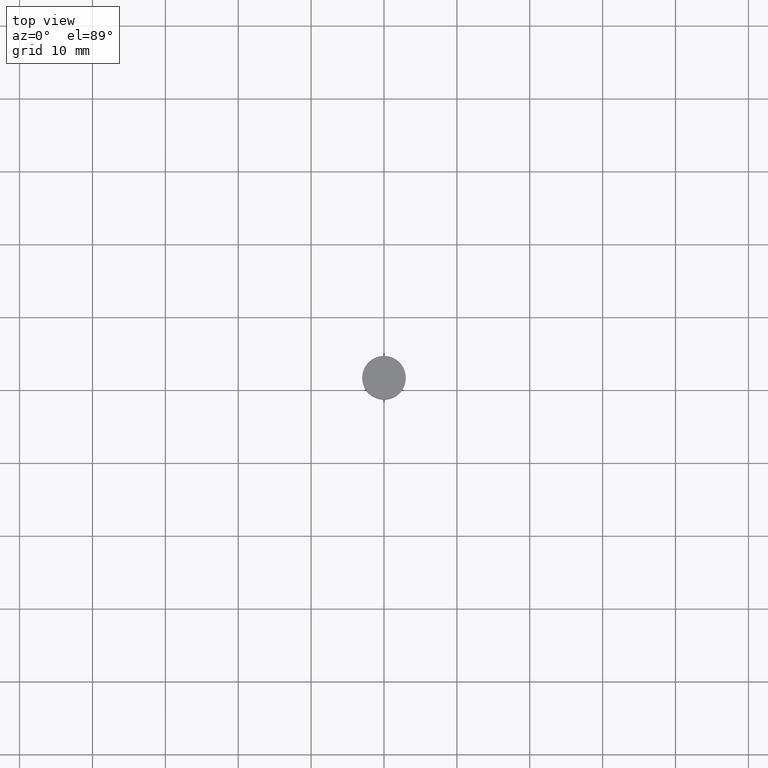
[diagram: clean part render]
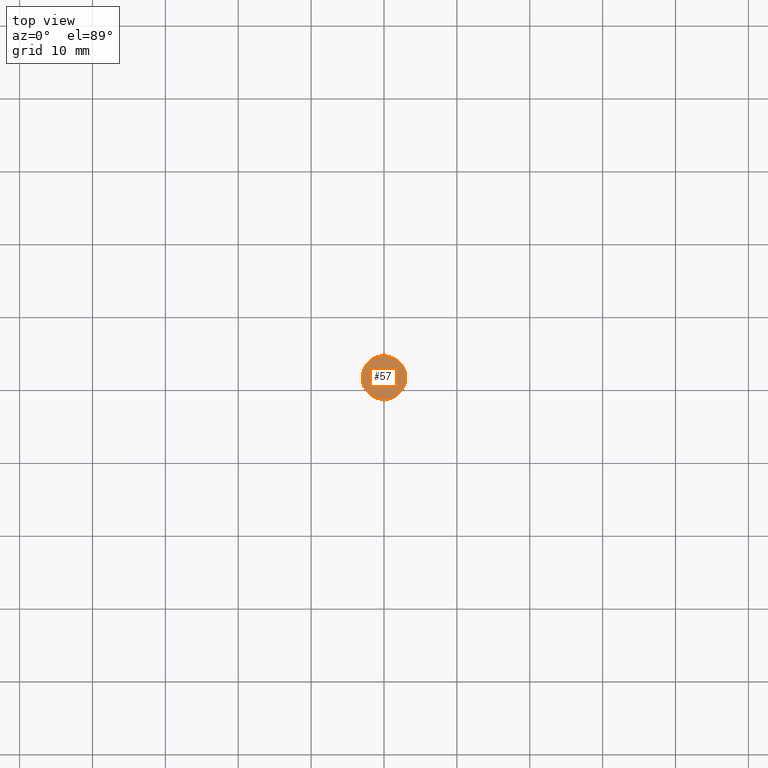
[diagram: same view with one face highlighted and labeled with its STEP entity id]
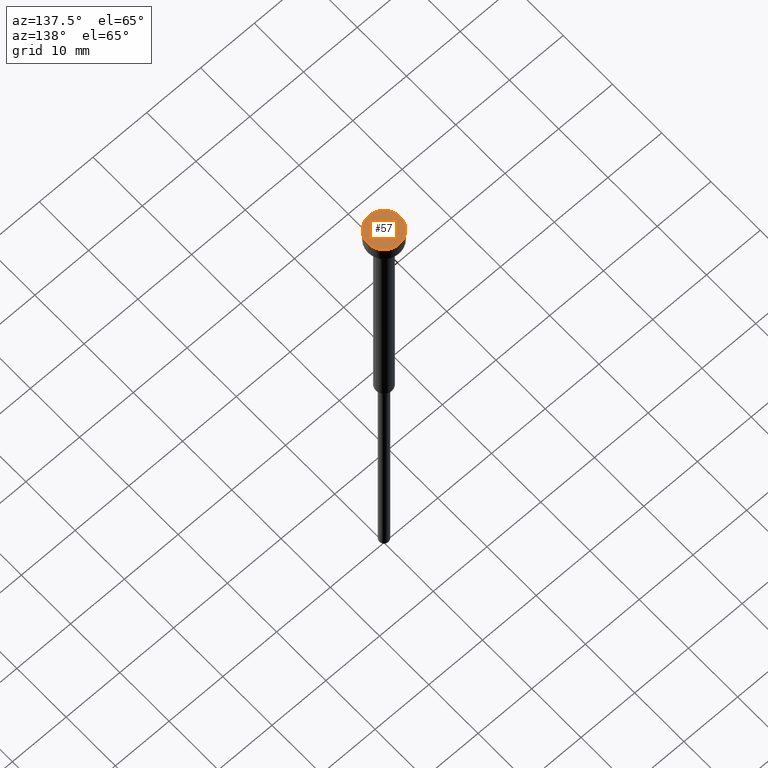
[diagram: same view with one face highlighted and labeled with its STEP entity id]
A machine part, top view. The second image highlights one B-rep face of the part: STEP entity #57.
A second angle (auxiliary view) of the same face is appended — the face is thin or edge-on in the first view.
In plain terms, the highlighted planar face has unit normal (0, -0, 1).
Its self-contained STEP definition (entity closure, byte-faithful):
#4 = DIRECTION ( 'NONE',  ( -0.000000000000000000, -0.000000000000000000, 1.000000000000000000 ) ) ;
#22 = ORIENTED_EDGE ( 'NONE', *, *, #293, .T. ) ;
#34 = DIRECTION ( 'NONE',  ( -0.000000000000000000, -0.000000000000000000, 1.000000000000000000 ) ) ;
#36 = PLANE ( 'NONE',  #48 ) ;
#48 = AXIS2_PLACEMENT_3D ( 'NONE', #145, #252, #153 ) ;
#57 = ADVANCED_FACE ( 'NONE', ( #203 ), #36, .T. ) ;
#60 = CARTESIAN_POINT ( 'NONE',  ( 0.000000000000000000, 0.000000000000000000, -3.673940397442059868E-16 ) ) ;
#67 = CARTESIAN_POINT ( 'NONE',  ( 0.000000000000000000, 0.000000000000000000, -3.673940397442059868E-16 ) ) ;
#78 = EDGE_CURVE ( 'NONE', #197, #266, #220, .T. ) ;
#82 = CARTESIAN_POINT ( 'NONE',  ( 3.000000000000000000, 0.000000000000000000, -3.673940397442059868E-16 ) ) ;
#112 = DIRECTION ( 'NONE',  ( 1.000000000000000000, 0.000000000000000000, 0.000000000000000000 ) ) ;
#145 = CARTESIAN_POINT ( 'NONE',  ( 0.000000000000000000, 0.000000000000000000, -1.836970198721029934E-16 ) ) ;
#153 = DIRECTION ( 'NONE',  ( 1.000000000000000000, 0.000000000000000000, 0.000000000000000000 ) ) ;
#160 = CARTESIAN_POINT ( 'NONE',  ( -3.000000000000000000, 3.673940397442059868E-16, -3.673940397442059868E-16 ) ) ;
#178 = DIRECTION ( 'NONE',  ( 1.000000000000000000, 0.000000000000000000, 0.000000000000000000 ) ) ;
#197 = VERTEX_POINT ( 'NONE', #160 ) ;
#203 = FACE_OUTER_BOUND ( 'NONE', #257, .T. ) ;
#204 = AXIS2_PLACEMENT_3D ( 'NONE', #60, #34, #112 ) ;
#220 = CIRCLE ( 'NONE', #294, 3.000000000000000000 ) ;
#227 = CIRCLE ( 'NONE', #204, 3.000000000000000000 ) ;
#252 = DIRECTION ( 'NONE',  ( 0.000000000000000000, -0.000000000000000000, 1.000000000000000000 ) ) ;
#257 = EDGE_LOOP ( 'NONE', ( #22, #260 ) ) ;
#260 = ORIENTED_EDGE ( 'NONE', *, *, #78, .T. ) ;
#266 = VERTEX_POINT ( 'NONE', #82 ) ;
#293 = EDGE_CURVE ( 'NONE', #266, #197, #227, .T. ) ;
#294 = AXIS2_PLACEMENT_3D ( 'NONE', #67, #4, #178 ) ;